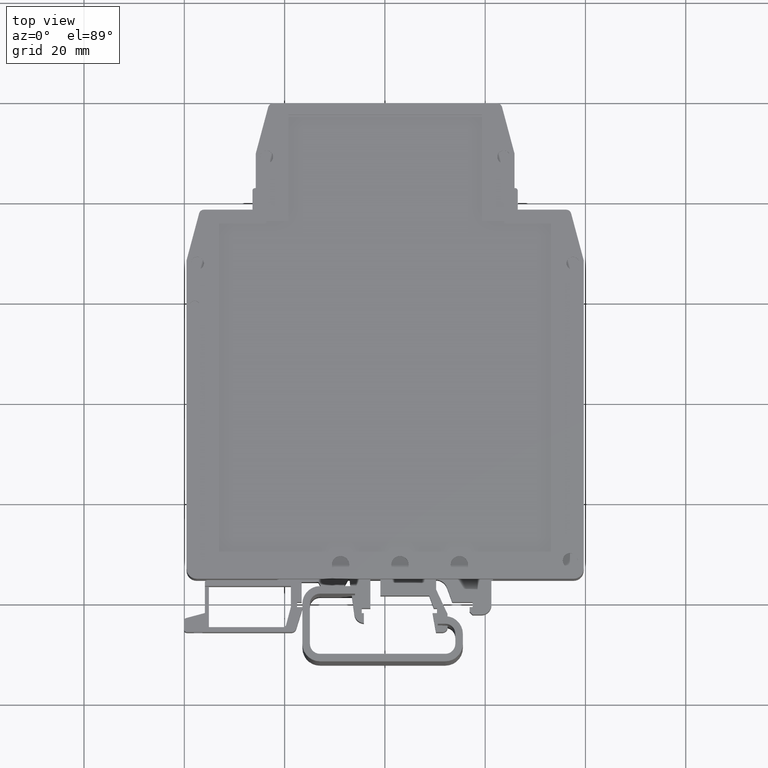
[diagram: clean part render]
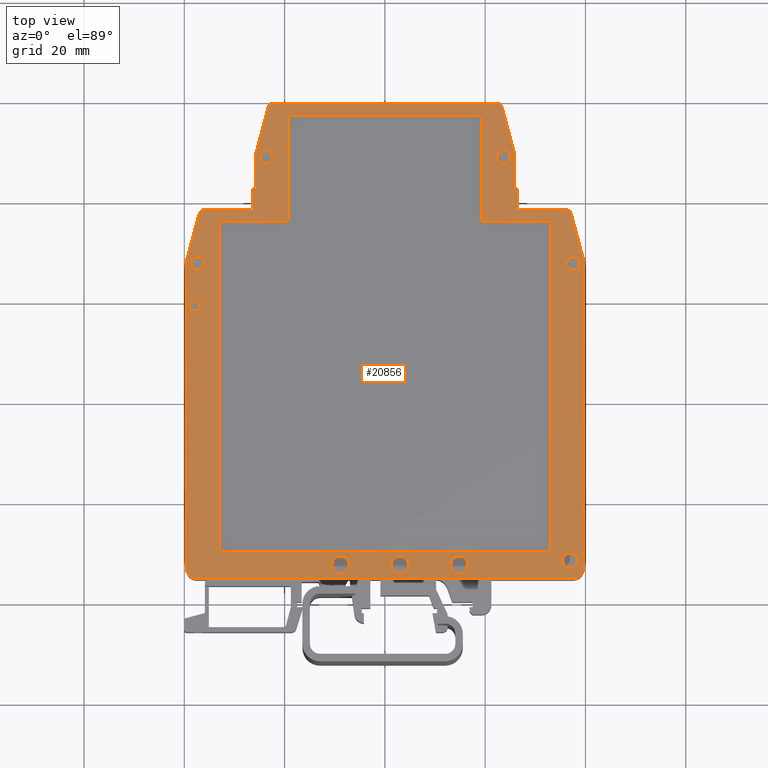
[diagram: same view with one face highlighted and labeled with its STEP entity id]
A machine part, top view. The second image highlights one B-rep face of the part: STEP entity #20856.
In plain terms, the highlighted planar face has unit normal (0, 0, -1).
Its self-contained STEP definition (entity closure, byte-faithful):
#18084=CARTESIAN_POINT('',(-215.081197940506000,206.322192974813020,-0.030000000000001));
#18085=VERTEX_POINT('',#18084);
#18086=CARTESIAN_POINT('',(-215.081197940506000,202.522192974813010,-0.030000000000001));
#18087=VERTEX_POINT('',#18086);
#18088=CARTESIAN_POINT('',(-215.081197940506000,206.322192974813020,-0.030000000000001));
#18089=DIRECTION('',(0.0,-1.0,0.0));
#18090=VECTOR('',#18089,3.800000000000011);
#18091=LINE('',#18088,#18090);
#18092=EDGE_CURVE('',#18085,#18087,#18091,.T.);
#18124=CARTESIAN_POINT('',(-215.581197940506000,206.822192974813020,-0.030000000000001));
#18125=VERTEX_POINT('',#18124);
#18126=CARTESIAN_POINT('',(-215.581197940506000,206.322192974813020,-0.030000000000001));
#18127=DIRECTION('',(0.0,0.0,1.0));
#18128=DIRECTION('',(1.0,0.0,0.0));
#18129=AXIS2_PLACEMENT_3D('',#18126,#18127,#18128);
#18130=CIRCLE('',#18129,0.500000000000000);
#18131=EDGE_CURVE('',#18085,#18125,#18130,.T.);
#18157=CARTESIAN_POINT('',(-215.731197940505980,206.822192974813020,-0.030000000000001));
#18158=VERTEX_POINT('',#18157);
#18159=CARTESIAN_POINT('',(-215.731197940505980,206.822192974813020,-0.030000000000001));
#18160=DIRECTION('',(1.0,0.0,0.0));
#18161=VECTOR('',#18160,0.149999999999977);
#18162=LINE('',#18159,#18161);
#18163=EDGE_CURVE('',#18158,#18125,#18162,.T.);
#18188=CARTESIAN_POINT('',(-215.731197940505980,213.722192974817010,-0.030000000000001));
#18189=VERTEX_POINT('',#18188);
#18190=CARTESIAN_POINT('',(-215.731197940505980,213.722192974817010,-0.030000000000001));
#18191=DIRECTION('',(0.0,-1.0,0.0));
#18192=VECTOR('',#18191,6.900000000003985);
#18193=LINE('',#18190,#18192);
#18194=EDGE_CURVE('',#18189,#18158,#18193,.T.);
#18219=CARTESIAN_POINT('',(-218.212091026508010,222.981012019915000,-0.030000000000001));
#18220=VERTEX_POINT('',#18219);
#18221=CARTESIAN_POINT('',(-218.212091026508010,222.981012019915000,-0.030000000000001));
#18222=DIRECTION('',(0.258819045102727,-0.965925826289013,0.0));
#18223=VECTOR('',#18222,9.585434816117733);
#18224=LINE('',#18221,#18223);
#18225=EDGE_CURVE('',#18220,#18189,#18224,.T.);
#18329=CARTESIAN_POINT('',(-219.178016852797010,223.722192974813030,-0.030000000000001));
#18330=VERTEX_POINT('',#18329);
#18331=CARTESIAN_POINT('',(-219.178016852797010,222.722192974813030,-0.030000000000001));
#18332=DIRECTION('',(0.0,0.0,1.0));
#18333=DIRECTION('',(1.0,0.0,0.0));
#18334=AXIS2_PLACEMENT_3D('',#18331,#18332,#18333);
#18335=CIRCLE('',#18334,1.000000000000028);
#18336=EDGE_CURVE('',#18220,#18330,#18335,.T.);
#18362=CARTESIAN_POINT('',(-263.884379028215960,223.722192974813030,-0.030000000000001));
#18363=VERTEX_POINT('',#18362);
#18364=CARTESIAN_POINT('',(-263.884379028215960,223.722192974813030,-0.030000000000001));
#18365=DIRECTION('',(1.0,0.0,0.0));
#18366=VECTOR('',#18365,44.706362175418946);
#18367=LINE('',#18364,#18366);
#18368=EDGE_CURVE('',#18363,#18330,#18367,.T.);
#18393=CARTESIAN_POINT('',(-264.850304854505000,222.981012019915000,-0.030000000000001));
#18394=VERTEX_POINT('',#18393);
#18395=CARTESIAN_POINT('',(-263.884379028215960,222.722192974813030,-0.030000000000001));
#18396=DIRECTION('',(0.0,0.0,1.0));
#18397=DIRECTION('',(1.0,0.0,0.0));
#18398=AXIS2_PLACEMENT_3D('',#18395,#18396,#18397);
#18399=CIRCLE('',#18398,1.0);
#18400=EDGE_CURVE('',#18363,#18394,#18399,.T.);
#18426=CARTESIAN_POINT('',(-267.331197940506000,213.722192974813030,-0.030000000000001));
#18427=VERTEX_POINT('',#18426);
#18428=CARTESIAN_POINT('',(-267.331197940506000,213.722192974813030,-0.030000000000001));
#18429=DIRECTION('',(0.258819045102524,0.965925826289068,0.0));
#18430=VECTOR('',#18429,9.585434816121310);
#18431=LINE('',#18428,#18430);
#18432=EDGE_CURVE('',#18427,#18394,#18431,.T.);
#18951=CARTESIAN_POINT('',(-267.331197940506000,206.822192974813020,-0.030000000000001));
#18952=VERTEX_POINT('',#18951);
#18953=CARTESIAN_POINT('',(-267.331197940506000,206.822192974813020,-0.030000000000001));
#18954=DIRECTION('',(0.0,1.0,0.0));
#18955=VECTOR('',#18954,6.900000000000006);
#18956=LINE('',#18953,#18955);
#18957=EDGE_CURVE('',#18952,#18427,#18956,.T.);
#18982=CARTESIAN_POINT('',(-267.481197940505980,206.822192974813020,-0.030000000000001));
#18983=VERTEX_POINT('',#18982);
#18984=CARTESIAN_POINT('',(-267.481197940505980,206.822192974813020,-0.030000000000001));
#18985=DIRECTION('',(1.0,0.0,0.0));
#18986=VECTOR('',#18985,0.149999999999977);
#18987=LINE('',#18984,#18986);
#18988=EDGE_CURVE('',#18983,#18952,#18987,.T.);
#19013=CARTESIAN_POINT('',(-267.981197940505980,202.522192974813010,-0.030000000000001));
#19014=VERTEX_POINT('',#19013);
#19015=CARTESIAN_POINT('',(-267.981197940505980,206.322192974813020,-0.030000000000001));
#19016=VERTEX_POINT('',#19015);
#19017=CARTESIAN_POINT('',(-267.981197940505980,202.522192974813010,-0.030000000000001));
#19018=DIRECTION('',(0.0,1.0,0.0));
#19019=VECTOR('',#19018,3.800000000000011);
#19020=LINE('',#19017,#19019);
#19021=EDGE_CURVE('',#19014,#19016,#19020,.T.);
#19053=CARTESIAN_POINT('',(-267.481197940505980,206.322192974813020,-0.030000000000001));
#19054=DIRECTION('',(0.0,0.0,1.0));
#19055=DIRECTION('',(1.0,0.0,0.0));
#19056=AXIS2_PLACEMENT_3D('',#19053,#19054,#19055);
#19057=CIRCLE('',#19056,0.500000000000000);
#19058=EDGE_CURVE('',#18983,#19016,#19057,.T.);
#19077=CARTESIAN_POINT('',(-277.659379009264000,202.522192974813010,-0.030000000000001));
#19078=VERTEX_POINT('',#19077);
#19079=CARTESIAN_POINT('',(-278.625304835553040,201.781012019914980,-0.030000000000001));
#19080=VERTEX_POINT('',#19079);
#19081=CARTESIAN_POINT('',(-277.659379009264000,201.522192974813010,-0.030000000000001));
#19082=DIRECTION('',(0.0,0.0,1.0));
#19083=DIRECTION('',(1.0,0.0,0.0));
#19084=AXIS2_PLACEMENT_3D('',#19081,#19082,#19083);
#19085=CIRCLE('',#19084,1.0);
#19086=EDGE_CURVE('',#19078,#19080,#19085,.T.);
#19450=CARTESIAN_POINT('',(-260.856197940505980,200.222192974813030,-0.030000000000001));
#19451=VERTEX_POINT('',#19450);
#19468=CARTESIAN_POINT('',(-274.631197921554020,200.222192974813030,-0.030000000000001));
#19469=VERTEX_POINT('',#19468);
#19476=CARTESIAN_POINT('',(-274.631197921554020,200.222192974813030,-0.030000000000001));
#19477=DIRECTION('',(1.0,0.0,0.0));
#19478=VECTOR('',#19477,13.774999981048040);
#19479=LINE('',#19476,#19478);
#19480=EDGE_CURVE('',#19469,#19451,#19479,.T.);
#19614=CARTESIAN_POINT('',(-201.931197921554000,130.922192974813020,-0.030000000000001));
#19615=VERTEX_POINT('',#19614);
#19624=CARTESIAN_POINT('',(-201.931197921554000,192.428891704623000,-0.030000000000001));
#19625=VERTEX_POINT('',#19624);
#19626=CARTESIAN_POINT('',(-201.931197921554000,192.428891704623000,-0.030000000000001));
#19627=DIRECTION('',(0.0,-1.0,0.0));
#19628=VECTOR('',#19627,61.506698729809983);
#19629=LINE('',#19626,#19628);
#19630=EDGE_CURVE('',#19625,#19615,#19629,.T.);
#19808=CARTESIAN_POINT('',(-263.881197940506010,213.022192974817020,-0.030000000000001));
#19809=VERTEX_POINT('',#19808);
#19810=CARTESIAN_POINT('',(-266.481197940505980,213.022192974817020,-0.030000000000001));
#19811=VERTEX_POINT('',#19810);
#19812=CARTESIAN_POINT('',(-265.181197940505970,213.022192974817020,-0.030000000000001));
#19813=DIRECTION('',(0.0,0.0,-1.0));
#19814=DIRECTION('',(-1.0,0.0,0.0));
#19815=AXIS2_PLACEMENT_3D('',#19812,#19813,#19814);
#19816=CIRCLE('',#19815,1.300000000000125);
#19817=EDGE_CURVE('',#19809,#19811,#19816,.T.);
#19866=CARTESIAN_POINT('',(-216.581197940506000,213.022192974817020,-0.030000000000001));
#19867=VERTEX_POINT('',#19866);
#19868=CARTESIAN_POINT('',(-219.181197940506000,213.022192974817020,-0.030000000000001));
#19869=VERTEX_POINT('',#19868);
#19870=CARTESIAN_POINT('',(-217.881197940505980,213.022192974817020,-0.030000000000001));
#19871=DIRECTION('',(0.0,0.0,-1.0));
#19872=DIRECTION('',(-1.0,0.0,0.0));
#19873=AXIS2_PLACEMENT_3D('',#19870,#19871,#19872);
#19874=CIRCLE('',#19873,1.299999999999955);
#19875=EDGE_CURVE('',#19867,#19869,#19874,.T.);
#20020=CARTESIAN_POINT('',(-222.206197940506000,221.422192974813020,-0.030000000000001));
#20021=VERTEX_POINT('',#20020);
#20022=CARTESIAN_POINT('',(-260.856197940505980,221.422192974813020,-0.030000000000001));
#20023=VERTEX_POINT('',#20022);
#20024=CARTESIAN_POINT('',(-222.206197940506000,221.422192974813020,-0.030000000000001));
#20025=DIRECTION('',(-1.0,0.0,0.0));
#20026=VECTOR('',#20025,38.649999999999977);
#20027=LINE('',#20024,#20026);
#20028=EDGE_CURVE('',#20021,#20023,#20027,.T.);
#20100=CARTESIAN_POINT('',(-205.403016833843990,202.522192974813010,-0.030000000000001));
#20101=VERTEX_POINT('',#20100);
#20102=CARTESIAN_POINT('',(-215.081197940506000,202.522192974813010,-0.030000000000001));
#20103=DIRECTION('',(1.0,0.0,0.0));
#20104=VECTOR('',#20103,9.678181106662009);
#20105=LINE('',#20102,#20104);
#20106=EDGE_CURVE('',#18087,#20101,#20105,.T.);
#20131=CARTESIAN_POINT('',(-204.437091007555010,201.781012019914980,-0.030000000000001));
#20132=VERTEX_POINT('',#20131);
#20133=CARTESIAN_POINT('',(-205.403016833843990,201.522192974813010,-0.030000000000001));
#20134=DIRECTION('',(0.0,0.0,1.0));
#20135=DIRECTION('',(1.0,0.0,0.0));
#20136=AXIS2_PLACEMENT_3D('',#20133,#20134,#20135);
#20137=CIRCLE('',#20136,1.000000000000028);
#20138=EDGE_CURVE('',#20132,#20101,#20137,.T.);
#20228=CARTESIAN_POINT('',(-254.581197921554040,131.672192974813020,-0.030000000000001));
#20229=VERTEX_POINT('',#20228);
#20230=CARTESIAN_POINT('',(-258.081197921554010,131.672192974813020,-0.030000000000001));
#20231=VERTEX_POINT('',#20230);
#20232=CARTESIAN_POINT('',(-256.331197921554010,131.672192974813020,-0.030000000000001));
#20233=DIRECTION('',(0.0,0.0,-1.0));
#20234=DIRECTION('',(-1.0,0.0,0.0));
#20235=AXIS2_PLACEMENT_3D('',#20232,#20233,#20234);
#20236=CIRCLE('',#20235,1.750000000000000);
#20237=EDGE_CURVE('',#20229,#20231,#20236,.T.);
#20582=CARTESIAN_POINT('',(-285.091197921554060,124.182192974813010,-0.030000000000001));
#20583=DIRECTION('',(0.0,0.0,1.0));
#20584=DIRECTION('',(1.0,0.0,0.0));
#20585=AXIS2_PLACEMENT_3D('',#20582,#20583,#20584);
#20586=PLANE('',#20585);
#20587=ORIENTED_EDGE('',*,*,#18092,.T.);
#20588=ORIENTED_EDGE('',*,*,#20106,.T.);
#20589=ORIENTED_EDGE('',*,*,#20138,.F.);
#20590=CARTESIAN_POINT('',(-204.437091007555010,201.781012019914980,-0.030000000000001));
#20591=DIRECTION('',(0.258819045102504,-0.965925826289073,0.0));
#20592=VECTOR('',#20591,9.682027398750982);
#20593=LINE('',#20590,#20592);
#20594=EDGE_CURVE('',#20132,#19625,#20593,.T.);
#20595=ORIENTED_EDGE('',*,*,#20594,.T.);
#20596=ORIENTED_EDGE('',*,*,#19630,.T.);
#20597=CARTESIAN_POINT('',(-203.931197921554000,128.922192974813020,-0.030000000000001));
#20598=VERTEX_POINT('',#20597);
#20599=CARTESIAN_POINT('',(-203.931197921554000,130.922192974813020,-0.030000000000001));
#20600=DIRECTION('',(0.0,0.0,1.0));
#20601=DIRECTION('',(1.0,0.0,0.0));
#20602=AXIS2_PLACEMENT_3D('',#20599,#20600,#20601);
#20603=CIRCLE('',#20602,2.0);
#20604=EDGE_CURVE('',#20598,#19615,#20603,.T.);
#20605=ORIENTED_EDGE('',*,*,#20604,.F.);
#20606=CARTESIAN_POINT('',(-279.131197921554020,128.922192974813020,-0.030000000000001));
#20607=VERTEX_POINT('',#20606);
#20608=CARTESIAN_POINT('',(-203.931197921554000,128.922192974813020,-0.030000000000001));
#20609=DIRECTION('',(-1.0,0.0,0.0));
#20610=VECTOR('',#20609,75.200000000000017);
#20611=LINE('',#20608,#20610);
#20612=EDGE_CURVE('',#20598,#20607,#20611,.T.);
#20613=ORIENTED_EDGE('',*,*,#20612,.T.);
#20614=CARTESIAN_POINT('',(-281.131197921554020,130.922192974813020,-0.030000000000001));
#20615=VERTEX_POINT('',#20614);
#20616=CARTESIAN_POINT('',(-279.131197921554020,130.922192974813020,-0.030000000000001));
#20617=DIRECTION('',(0.0,0.0,1.0));
#20618=DIRECTION('',(1.0,0.0,0.0));
#20619=AXIS2_PLACEMENT_3D('',#20616,#20617,#20618);
#20620=CIRCLE('',#20619,2.0);
#20621=EDGE_CURVE('',#20615,#20607,#20620,.T.);
#20622=ORIENTED_EDGE('',*,*,#20621,.F.);
#20623=CARTESIAN_POINT('',(-281.131197921554020,192.428891704623000,-0.030000000000001));
#20624=VERTEX_POINT('',#20623);
#20625=CARTESIAN_POINT('',(-281.131197921554020,130.922192974813020,-0.030000000000001));
#20626=DIRECTION('',(0.0,1.0,0.0));
#20627=VECTOR('',#20626,61.506698729809983);
#20628=LINE('',#20625,#20627);
#20629=EDGE_CURVE('',#20615,#20624,#20628,.T.);
#20630=ORIENTED_EDGE('',*,*,#20629,.T.);
#20631=CARTESIAN_POINT('',(-281.131197921554020,192.428891704623000,-0.030000000000001));
#20632=DIRECTION('',(0.258819045102501,0.965925826289074,0.0));
#20633=VECTOR('',#20632,9.682027398750973);
#20634=LINE('',#20631,#20633);
#20635=EDGE_CURVE('',#20624,#19080,#20634,.T.);
#20636=ORIENTED_EDGE('',*,*,#20635,.T.);
#20637=ORIENTED_EDGE('',*,*,#19086,.F.);
#20638=CARTESIAN_POINT('',(-277.659379009264000,202.522192974813010,-0.030000000000001));
#20639=DIRECTION('',(1.0,0.0,0.0));
#20640=VECTOR('',#20639,9.678181068758022);
#20641=LINE('',#20638,#20640);
#20642=EDGE_CURVE('',#19078,#19014,#20641,.T.);
#20643=ORIENTED_EDGE('',*,*,#20642,.T.);
#20644=ORIENTED_EDGE('',*,*,#19021,.T.);
#20645=ORIENTED_EDGE('',*,*,#19058,.F.);
#20646=ORIENTED_EDGE('',*,*,#18988,.T.);
#20647=ORIENTED_EDGE('',*,*,#18957,.T.);
#20648=ORIENTED_EDGE('',*,*,#18432,.T.);
#20649=ORIENTED_EDGE('',*,*,#18400,.F.);
#20650=ORIENTED_EDGE('',*,*,#18368,.T.);
#20651=ORIENTED_EDGE('',*,*,#18336,.F.);
#20652=ORIENTED_EDGE('',*,*,#18225,.T.);
#20653=ORIENTED_EDGE('',*,*,#18194,.T.);
#20654=ORIENTED_EDGE('',*,*,#18163,.T.);
#20655=ORIENTED_EDGE('',*,*,#18131,.F.);
#20656=EDGE_LOOP('',(#20587,#20588,#20589,#20595,#20596,#20605,#20613,#20622,#20630,#20636,#20637,#20643,#20644,#20645,#20646,#20647,#20648,#20649,#20650,#20651,#20652,#20653,#20654,#20655));
#20657=FACE_OUTER_BOUND('',#20656,.T.);
#20658=CARTESIAN_POINT('',(-202.781197921554000,191.822192974813020,-0.030000000000001));
#20659=VERTEX_POINT('',#20658);
#20660=CARTESIAN_POINT('',(-205.381197921554020,191.822192974813020,-0.030000000000001));
#20661=VERTEX_POINT('',#20660);
#20662=CARTESIAN_POINT('',(-204.081197921554010,191.822192974813020,-0.030000000000001));
#20663=DIRECTION('',(0.0,0.0,-1.0));
#20664=DIRECTION('',(-1.0,0.0,0.0));
#20665=AXIS2_PLACEMENT_3D('',#20662,#20663,#20664);
#20666=CIRCLE('',#20665,1.299999999999955);
#20667=EDGE_CURVE('',#20659,#20661,#20666,.T.);
#20668=ORIENTED_EDGE('',*,*,#20667,.F.);
#20669=CARTESIAN_POINT('',(-204.081197921554010,191.822192974813020,-0.030000000000001));
#20670=DIRECTION('',(0.0,0.0,-1.0));
#20671=DIRECTION('',(-1.0,0.0,0.0));
#20672=AXIS2_PLACEMENT_3D('',#20669,#20670,#20671);
#20673=CIRCLE('',#20672,1.299999999999955);
#20674=EDGE_CURVE('',#20661,#20659,#20673,.T.);
#20675=ORIENTED_EDGE('',*,*,#20674,.F.);
#20676=EDGE_LOOP('',(#20668,#20675));
#20677=FACE_BOUND('',#20676,.T.);
#20678=CARTESIAN_POINT('',(-277.681197921554030,191.822192974813020,-0.030000000000001));
#20679=VERTEX_POINT('',#20678);
#20680=CARTESIAN_POINT('',(-280.281197921554050,191.822192974813020,-0.030000000000001));
#20681=VERTEX_POINT('',#20680);
#20682=CARTESIAN_POINT('',(-278.981197921554040,191.822192974813020,-0.030000000000001));
#20683=DIRECTION('',(0.0,0.0,-1.0));
#20684=DIRECTION('',(-1.0,0.0,0.0));
#20685=AXIS2_PLACEMENT_3D('',#20682,#20683,#20684);
#20686=CIRCLE('',#20685,1.300000000000011);
#20687=EDGE_CURVE('',#20679,#20681,#20686,.T.);
#20688=ORIENTED_EDGE('',*,*,#20687,.F.);
#20689=CARTESIAN_POINT('',(-278.981197921554040,191.822192974813020,-0.030000000000001));
#20690=DIRECTION('',(0.0,0.0,-1.0));
#20691=DIRECTION('',(-1.0,0.0,0.0));
#20692=AXIS2_PLACEMENT_3D('',#20689,#20690,#20691);
#20693=CIRCLE('',#20692,1.300000000000011);
#20694=EDGE_CURVE('',#20681,#20679,#20693,.T.);
#20695=ORIENTED_EDGE('',*,*,#20694,.F.);
#20696=EDGE_LOOP('',(#20688,#20695));
#20697=FACE_BOUND('',#20696,.T.);
#20698=CARTESIAN_POINT('',(-260.856197940505980,221.422192974813020,-0.030000000000001));
#20699=DIRECTION('',(0.0,-1.0,0.0));
#20700=VECTOR('',#20699,21.199999999999989);
#20701=LINE('',#20698,#20700);
#20702=EDGE_CURVE('',#20023,#19451,#20701,.T.);
#20703=ORIENTED_EDGE('',*,*,#20702,.T.);
#20704=ORIENTED_EDGE('',*,*,#19480,.F.);
#20705=CARTESIAN_POINT('',(-274.631197921554020,134.322192974813020,-0.030000000000001));
#20706=VERTEX_POINT('',#20705);
#20707=CARTESIAN_POINT('',(-274.631197921554020,134.322192974813020,-0.030000000000001));
#20708=DIRECTION('',(0.0,1.0,0.0));
#20709=VECTOR('',#20708,65.900000000000006);
#20710=LINE('',#20707,#20709);
#20711=EDGE_CURVE('',#20706,#19469,#20710,.T.);
#20712=ORIENTED_EDGE('',*,*,#20711,.F.);
#20713=CARTESIAN_POINT('',(-208.431197921554030,134.322192974813020,-0.030000000000001));
#20714=VERTEX_POINT('',#20713);
#20715=CARTESIAN_POINT('',(-208.431197921554030,134.322192974813020,-0.030000000000001));
#20716=DIRECTION('',(-1.0,0.0,0.0));
#20717=VECTOR('',#20716,66.199999999999989);
#20718=LINE('',#20715,#20717);
#20719=EDGE_CURVE('',#20714,#20706,#20718,.T.);
#20720=ORIENTED_EDGE('',*,*,#20719,.F.);
#20721=CARTESIAN_POINT('',(-208.431197921554030,200.222192974813030,-0.030000000000001));
#20722=VERTEX_POINT('',#20721);
#20723=CARTESIAN_POINT('',(-208.431197921554030,200.222192974813030,-0.030000000000001));
#20724=DIRECTION('',(0.0,-1.0,0.0));
#20725=VECTOR('',#20724,65.900000000000006);
#20726=LINE('',#20723,#20725);
#20727=EDGE_CURVE('',#20722,#20714,#20726,.T.);
#20728=ORIENTED_EDGE('',*,*,#20727,.F.);
#20729=CARTESIAN_POINT('',(-222.206197940506000,200.222192974813030,-0.030000000000001));
#20730=VERTEX_POINT('',#20729);
#20731=CARTESIAN_POINT('',(-222.206197940506000,200.222192974813030,-0.030000000000001));
#20732=DIRECTION('',(1.0,0.0,0.0));
#20733=VECTOR('',#20732,13.775000018951971);
#20734=LINE('',#20731,#20733);
#20735=EDGE_CURVE('',#20730,#20722,#20734,.T.);
#20736=ORIENTED_EDGE('',*,*,#20735,.F.);
#20737=CARTESIAN_POINT('',(-222.206197940506000,200.222192974813030,-0.030000000000001));
#20738=DIRECTION('',(0.0,1.0,0.0));
#20739=VECTOR('',#20738,21.199999999999989);
#20740=LINE('',#20737,#20739);
#20741=EDGE_CURVE('',#20730,#20021,#20740,.T.);
#20742=ORIENTED_EDGE('',*,*,#20741,.T.);
#20743=ORIENTED_EDGE('',*,*,#20028,.T.);
#20744=EDGE_LOOP('',(#20703,#20704,#20712,#20720,#20728,#20736,#20742,#20743));
#20745=FACE_BOUND('',#20744,.T.);
#20746=CARTESIAN_POINT('',(-276.931197921554030,132.522192974813010,-0.030000000000001));
#20747=VERTEX_POINT('',#20746);
#20748=CARTESIAN_POINT('',(-279.931197921554030,132.522192974813010,-0.030000000000001));
#20749=VERTEX_POINT('',#20748);
#20750=CARTESIAN_POINT('',(-278.431197921554030,132.522192974813010,-0.030000000000001));
#20751=DIRECTION('',(0.0,0.0,-1.0));
#20752=DIRECTION('',(-1.0,0.0,0.0));
#20753=AXIS2_PLACEMENT_3D('',#20750,#20751,#20752);
#20754=CIRCLE('',#20753,1.500000000000000);
#20755=EDGE_CURVE('',#20747,#20749,#20754,.T.);
#20756=ORIENTED_EDGE('',*,*,#20755,.F.);
#20757=CARTESIAN_POINT('',(-278.431197921554030,132.522192974813010,-0.030000000000001));
#20758=DIRECTION('',(0.0,0.0,-1.0));
#20759=DIRECTION('',(-1.0,0.0,0.0));
#20760=AXIS2_PLACEMENT_3D('',#20757,#20758,#20759);
#20761=CIRCLE('',#20760,1.500000000000000);
#20762=EDGE_CURVE('',#20749,#20747,#20761,.T.);
#20763=ORIENTED_EDGE('',*,*,#20762,.F.);
#20764=EDGE_LOOP('',(#20756,#20763));
#20765=FACE_BOUND('',#20764,.T.);
#20766=CARTESIAN_POINT('',(-202.491197921554030,183.322192974813020,-0.030000000000001));
#20767=VERTEX_POINT('',#20766);
#20768=CARTESIAN_POINT('',(-204.571197921554020,183.322192974813020,-0.030000000000001));
#20769=VERTEX_POINT('',#20768);
#20770=CARTESIAN_POINT('',(-203.531197921554000,183.322192974813020,-0.030000000000001));
#20771=DIRECTION('',(0.0,0.0,-1.0));
#20772=DIRECTION('',(-1.0,0.0,0.0));
#20773=AXIS2_PLACEMENT_3D('',#20770,#20771,#20772);
#20774=CIRCLE('',#20773,1.039999999999992);
#20775=EDGE_CURVE('',#20767,#20769,#20774,.T.);
#20776=ORIENTED_EDGE('',*,*,#20775,.F.);
#20777=CARTESIAN_POINT('',(-203.531197921554000,183.322192974813020,-0.030000000000001));
#20778=DIRECTION('',(0.0,0.0,-1.0));
#20779=DIRECTION('',(-1.0,0.0,0.0));
#20780=AXIS2_PLACEMENT_3D('',#20777,#20778,#20779);
#20781=CIRCLE('',#20780,1.039999999999992);
#20782=EDGE_CURVE('',#20769,#20767,#20781,.T.);
#20783=ORIENTED_EDGE('',*,*,#20782,.F.);
#20784=EDGE_LOOP('',(#20776,#20783));
#20785=FACE_BOUND('',#20784,.T.);
#20786=ORIENTED_EDGE('',*,*,#19817,.F.);
#20787=CARTESIAN_POINT('',(-265.181197940505970,213.022192974817020,-0.030000000000001));
#20788=DIRECTION('',(0.0,0.0,-1.0));
#20789=DIRECTION('',(-1.0,0.0,0.0));
#20790=AXIS2_PLACEMENT_3D('',#20787,#20788,#20789);
#20791=CIRCLE('',#20790,1.300000000000125);
#20792=EDGE_CURVE('',#19811,#19809,#20791,.T.);
#20793=ORIENTED_EDGE('',*,*,#20792,.F.);
#20794=EDGE_LOOP('',(#20786,#20793));
#20795=FACE_BOUND('',#20794,.T.);
#20796=ORIENTED_EDGE('',*,*,#19875,.F.);
#20797=CARTESIAN_POINT('',(-217.881197940505980,213.022192974817020,-0.030000000000001));
#20798=DIRECTION('',(0.0,0.0,-1.0));
#20799=DIRECTION('',(-1.0,0.0,0.0));
#20800=AXIS2_PLACEMENT_3D('',#20797,#20798,#20799);
#20801=CIRCLE('',#20800,1.299999999999955);
#20802=EDGE_CURVE('',#19869,#19867,#20801,.T.);
#20803=ORIENTED_EDGE('',*,*,#20802,.F.);
#20804=EDGE_LOOP('',(#20796,#20803));
#20805=FACE_BOUND('',#20804,.T.);
#20806=CARTESIAN_POINT('',(-242.731197921554040,131.672192974813020,-0.030000000000001));
#20807=VERTEX_POINT('',#20806);
#20808=CARTESIAN_POINT('',(-246.231197921554040,131.672192974813020,-0.030000000000001));
#20809=VERTEX_POINT('',#20808);
#20810=CARTESIAN_POINT('',(-244.481197921554040,131.672192974813020,-0.030000000000001));
#20811=DIRECTION('',(0.0,0.0,-1.0));
#20812=DIRECTION('',(-1.0,0.0,0.0));
#20813=AXIS2_PLACEMENT_3D('',#20810,#20811,#20812);
#20814=CIRCLE('',#20813,1.750000000000000);
#20815=EDGE_CURVE('',#20807,#20809,#20814,.T.);
#20816=ORIENTED_EDGE('',*,*,#20815,.F.);
#20817=CARTESIAN_POINT('',(-244.481197921554040,131.672192974813020,-0.030000000000001));
#20818=DIRECTION('',(0.0,0.0,-1.0));
#20819=DIRECTION('',(-1.0,0.0,0.0));
#20820=AXIS2_PLACEMENT_3D('',#20817,#20818,#20819);
#20821=CIRCLE('',#20820,1.750000000000000);
#20822=EDGE_CURVE('',#20809,#20807,#20821,.T.);
#20823=ORIENTED_EDGE('',*,*,#20822,.F.);
#20824=EDGE_LOOP('',(#20816,#20823));
#20825=FACE_BOUND('',#20824,.T.);
#20826=CARTESIAN_POINT('',(-230.881197921554020,131.672192974813020,-0.030000000000001));
#20827=VERTEX_POINT('',#20826);
#20828=CARTESIAN_POINT('',(-234.381197921554020,131.672192974813020,-0.030000000000001));
#20829=VERTEX_POINT('',#20828);
#20830=CARTESIAN_POINT('',(-232.631197921554020,131.672192974813020,-0.030000000000001));
#20831=DIRECTION('',(0.0,0.0,-1.0));
#20832=DIRECTION('',(-1.0,0.0,0.0));
#20833=AXIS2_PLACEMENT_3D('',#20830,#20831,#20832);
#20834=CIRCLE('',#20833,1.750000000000000);
#20835=EDGE_CURVE('',#20827,#20829,#20834,.T.);
#20836=ORIENTED_EDGE('',*,*,#20835,.F.);
#20837=CARTESIAN_POINT('',(-232.631197921554020,131.672192974813020,-0.030000000000001));
#20838=DIRECTION('',(0.0,0.0,-1.0));
#20839=DIRECTION('',(-1.0,0.0,0.0));
#20840=AXIS2_PLACEMENT_3D('',#20837,#20838,#20839);
#20841=CIRCLE('',#20840,1.750000000000000);
#20842=EDGE_CURVE('',#20829,#20827,#20841,.T.);
#20843=ORIENTED_EDGE('',*,*,#20842,.F.);
#20844=EDGE_LOOP('',(#20836,#20843));
#20845=FACE_BOUND('',#20844,.T.);
#20846=ORIENTED_EDGE('',*,*,#20237,.F.);
#20847=CARTESIAN_POINT('',(-256.331197921554010,131.672192974813020,-0.030000000000001));
#20848=DIRECTION('',(0.0,0.0,-1.0));
#20849=DIRECTION('',(-1.0,0.0,0.0));
#20850=AXIS2_PLACEMENT_3D('',#20847,#20848,#20849);
#20851=CIRCLE('',#20850,1.750000000000000);
#20852=EDGE_CURVE('',#20231,#20229,#20851,.T.);
#20853=ORIENTED_EDGE('',*,*,#20852,.F.);
#20854=EDGE_LOOP('',(#20846,#20853));
#20855=FACE_BOUND('',#20854,.T.);
#20856=ADVANCED_FACE('',(#20657,#20677,#20697,#20745,#20765,#20785,#20795,#20805,#20825,#20845,#20855),#20586,.F.);